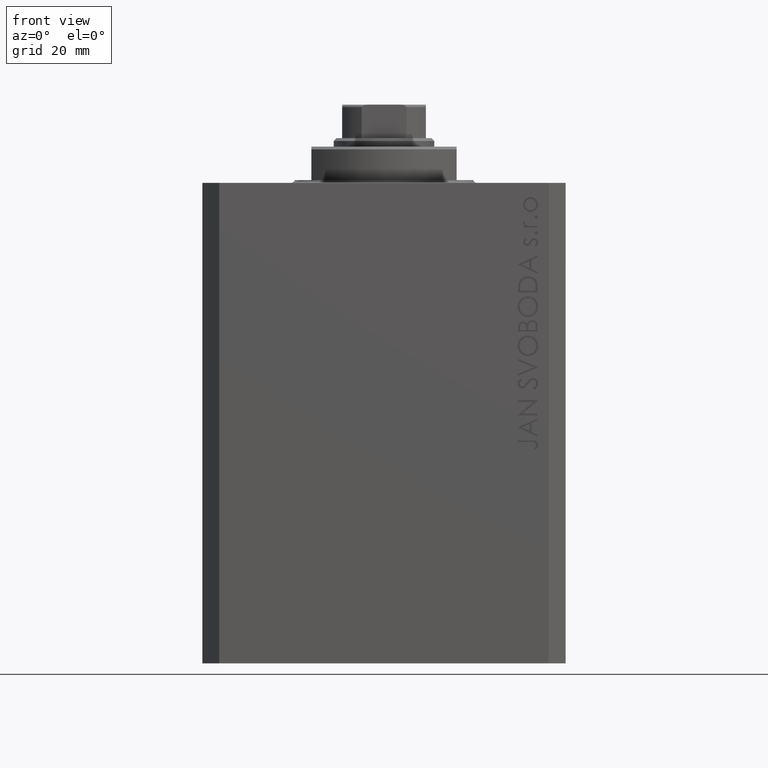
[diagram: clean part render]
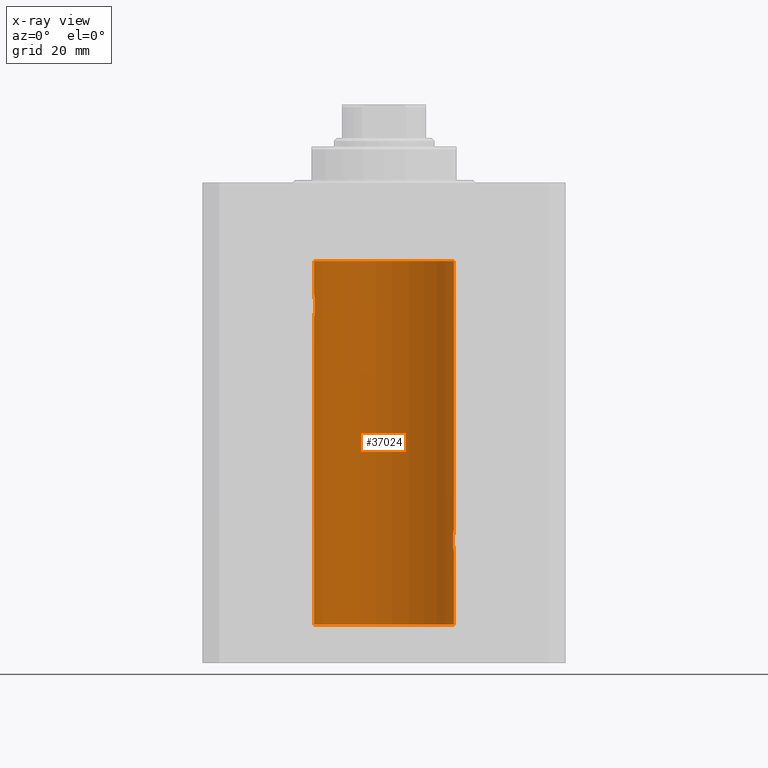
[diagram: x-ray — body ghosted, one internal face saturated and labeled with its STEP entity id]
A machine part, front view, then the same camera in x-ray: the body is ghosted and one INTERNAL B-rep face — a face not visible from any outside direction — is saturated and labeled: STEP entity #37024.
In plain terms, the highlighted cylindrical surface (partial cylindrical patch) has radius 12.5 mm, axis along (0, 0, 1).
Its self-contained STEP definition (entity closure, byte-faithful):
#30 = CARTESIAN_POINT ( 'NONE',  ( -12.37764291807175354, 1.747608771958140794, -20.99316879552500481 ) ) ;
#263 = CARTESIAN_POINT ( 'NONE',  ( -12.48983485452574982, 0.5201193324741355539, -23.93561774521849372 ) ) ;
#1508 = CARTESIAN_POINT ( 'NONE',  ( 12.39869754437268767, 1.598954131913722820, -65.22932152813012863 ) ) ;
#1640 = LINE ( 'NONE', #13071, #11823 ) ;
#1761 = ORIENTED_EDGE ( 'NONE', *, *, #27591, .T. ) ;
#2265 = LINE ( 'NONE', #45455, #19500 ) ;
#2315 = VERTEX_POINT ( 'NONE', #10642 ) ;
#2348 = DIRECTION ( 'NONE',  ( -0.000000000000000000, -0.000000000000000000, 1.000000000000000000 ) ) ;
#2592 = EDGE_CURVE ( 'NONE', #2315, #29070, #22992, .T. ) ;
#2729 = CARTESIAN_POINT ( 'NONE',  ( 12.50000000000000000, 2.171296804141808658E-15, -66.00000000000000000 ) ) ;
#3307 = EDGE_CURVE ( 'NONE', #7739, #16865, #1640, .T. ) ;
#3614 = CARTESIAN_POINT ( 'NONE',  ( -12.50000000000000533, 0.1306394121199390135, -24.00000000000000711 ) ) ;
#4089 = CARTESIAN_POINT ( 'NONE',  ( -12.35517291625592051, 1.897967064543089721, -22.64415233770293412 ) ) ;
#4131 = CARTESIAN_POINT ( 'NONE',  ( 12.46910683544639120, 0.8866026273585023709, -62.20247863689696288 ) ) ;
#6028 = CARTESIAN_POINT ( 'NONE',  ( 12.43016561391613095, 1.322713721413880661, -65.50578877836699121 ) ) ;
#6315 = ORIENTED_EDGE ( 'NONE', *, *, #30833, .F. ) ;
#6719 = CARTESIAN_POINT ( 'NONE',  ( -12.40913174964213184, 1.507394620545641439, -23.32102833500698225 ) ) ;
#7187 = CARTESIAN_POINT ( 'NONE',  ( -12.34109209020652465, 1.986986967296539897, -22.26269462454597914 ) ) ;
#7415 = DIRECTION ( 'NONE',  ( 1.000000000000000000, 0.000000000000000000, 0.000000000000000000 ) ) ;
#7422 = CARTESIAN_POINT ( 'NONE',  ( -12.50000000000000000, 1.867773856434666690E-17, -20.00000000000000000 ) ) ;
#7705 = CARTESIAN_POINT ( 'NONE',  ( 12.43037348241797879, 1.320834183883838220, -62.49243837704295856 ) ) ;
#7739 = VERTEX_POINT ( 'NONE', #31942 ) ;
#8162 = CARTESIAN_POINT ( 'NONE',  ( 12.37021546997940113, 1.797317011867403114, -63.11295119741077997 ) ) ;
#8439 = ORIENTED_EDGE ( 'NONE', *, *, #36577, .T. ) ;
#8449 = LINE ( 'NONE', #45438, #38800 ) ;
#8775 = CIRCLE ( 'NONE', #35451, 12.50000000000000000 ) ;
#8892 = CARTESIAN_POINT ( 'NONE',  ( -12.50000000000000000, 1.530808498934191521E-15, -79.09999999999999432 ) ) ;
#9138 = CARTESIAN_POINT ( 'NONE',  ( 12.37760587642916299, 1.747868572747719229, -65.00639653168998677 ) ) ;
#9476 = EDGE_CURVE ( 'NONE', #2315, #44884, #16927, .T. ) ;
#9585 = CARTESIAN_POINT ( 'NONE',  ( 12.33896267925302759, 2.000000000000248246, -64.26143174220787557 ) ) ;
#10276 = CARTESIAN_POINT ( 'NONE',  ( -12.46909283808506430, 0.8868029758979402155, -23.79742491916155345 ) ) ;
#10642 = CARTESIAN_POINT ( 'NONE',  ( -12.50000000000000000, 1.867773856434666690E-17, -20.00000000000000000 ) ) ;
#10985 = CARTESIAN_POINT ( 'NONE',  ( -12.44076681548080288, 1.220297236145718944, -23.58991408680628155 ) ) ;
#11513 = CARTESIAN_POINT ( 'NONE',  ( 12.40916530024876785, 1.507117913375715768, -62.67865955049006743 ) ) ;
#11823 = VECTOR ( 'NONE', #2348, 1000.000000000000000 ) ;
#11841 = VERTEX_POINT ( 'NONE', #14378 ) ;
#11972 = CARTESIAN_POINT ( 'NONE',  ( 12.35520276972935250, 1.897773362058238655, -63.35528278634336630 ) ) ;
#12461 = CARTESIAN_POINT ( 'NONE',  ( 12.48390005916862933, 0.6457215011736524568, -65.89742771554266199 ) ) ;
#12705 = CARTESIAN_POINT ( 'NONE',  ( 12.46019522898365395, 1.002712894177336000, -65.73540896027600411 ) ) ;
#13071 = CARTESIAN_POINT ( 'NONE',  ( 12.50000000000000000, 0.000000000000000000, -79.09999999999999432 ) ) ;
#13516 = EDGE_CURVE ( 'NONE', #11841, #29070, #27464, .T. ) ;
#14218 = AXIS2_PLACEMENT_3D ( 'NONE', #25801, #15522, #7415 ) ;
#14378 = CARTESIAN_POINT ( 'NONE',  ( 12.50000000000000000, 0.000000000000000000, -13.99999999999999822 ) ) ;
#14581 = CARTESIAN_POINT ( 'NONE',  ( -12.34781876294798053, 1.947190906025043633, -21.47436412829509678 ) ) ;
#14812 = CARTESIAN_POINT ( 'NONE',  ( -12.34922241902463114, 1.935814255713574239, -22.51937350851555308 ) ) ;
#15099 = CARTESIAN_POINT ( 'NONE',  ( 12.50000000000000355, 0.1306079576516675778, -62.00000000000000000 ) ) ;
#15522 = DIRECTION ( 'NONE',  ( -0.000000000000000000, -0.000000000000000000, 1.000000000000000000 ) ) ;
#15567 = CARTESIAN_POINT ( 'NONE',  ( 12.49788668346400300, 0.2632864803365712048, -62.01308975838333026 ) ) ;
#15724 = ORIENTED_EDGE ( 'NONE', *, *, #43202, .F. ) ;
#16106 = DIRECTION ( 'NONE',  ( -0.000000000000000000, -0.000000000000000000, 1.000000000000000000 ) ) ;
#16296 = CARTESIAN_POINT ( 'NONE',  ( 12.46901623405143944, 0.8878913781257876670, -65.79689651717549737 ) ) ;
#16367 = DIRECTION ( 'NONE',  ( 0.000000000000000000, 0.000000000000000000, 1.000000000000000000 ) ) ;
#16771 = DIRECTION ( 'NONE',  ( 0.000000000000000000, 0.000000000000000000, 1.000000000000000000 ) ) ;
#16865 = VERTEX_POINT ( 'NONE', #2729 ) ;
#16867 = CARTESIAN_POINT ( 'NONE',  ( -12.50000000000000000, 1.530808498934191521E-15, -79.09999999999999432 ) ) ;
#16927 = B_SPLINE_CURVE_WITH_KNOTS ( 'NONE', 3,
 ( #7422, #29640, #18165, #36785, #39422, #32726, #18633, #29162, #46800, #32961, #30, #14581, #43703, #43933, #7187, #14812, #4089, #25095, #40127, #47040, #6719, #21981, #10985, #25564, #10276, #36309, #263, #21272, #3614, #24851 ),
 .UNSPECIFIED., .F., .F.,
 ( 4, 2, 2, 2, 2, 2, 2, 2, 2, 2, 2, 2, 2, 2, 4 ),
 ( 1.814683826656258666E-20, 0.0003914362731607577369, 0.0007828725463215154739, 0.001174308819482273265, 0.001565745092643030948, 0.002348617638964546530, 0.003131490185286061895, 0.003522926458446825216, 0.003914362731607588103, 0.004305799004768351423, 0.004697235277929114744, 0.005088671551089878065, 0.005480107824250641385, 0.005871544097411404706, 0.006262980370572168026 ),
 .UNSPECIFIED. ) ;
#18165 = CARTESIAN_POINT ( 'NONE',  ( -12.49789934882883458, 0.2624928479599910047, -20.01301208516349917 ) ) ;
#18633 = CARTESIAN_POINT ( 'NONE',  ( -12.46021263690096958, 1.002494658017156981, -20.26446744561863156 ) ) ;
#18670 = CARTESIAN_POINT ( 'NONE',  ( 12.48395395845270350, 0.6446573166014684109, -62.10222124213517247 ) ) ;
#19500 = VECTOR ( 'NONE', #16106, 1000.000000000000000 ) ;
#19633 = CARTESIAN_POINT ( 'NONE',  ( 12.33896267925302759, 2.000000000000247802, -64.00000000000000000 ) ) ;
#20790 = ORIENTED_EDGE ( 'NONE', *, *, #13516, .T. ) ;
#21257 = EDGE_LOOP ( 'NONE', ( #15724, #6315, #40354, #1761, #26466, #8439, #20790, #36739, #45175 ) ) ;
#21272 = CARTESIAN_POINT ( 'NONE',  ( -12.49788564268284041, 0.2633501011236127343, -23.98690384766255335 ) ) ;
#21981 = CARTESIAN_POINT ( 'NONE',  ( -12.43034574091277911, 1.321095788880539024, -23.50733550364322255 ) ) ;
#22512 = DIRECTION ( 'NONE',  ( -0.000000000000000000, -0.000000000000000000, 1.000000000000000000 ) ) ;
#22992 = LINE ( 'NONE', #8892, #35381 ) ;
#24851 = CARTESIAN_POINT ( 'NONE',  ( -12.50000000000000000, 1.530808426276628993E-15, -23.99999999999999645 ) ) ;
#25095 = CARTESIAN_POINT ( 'NONE',  ( -12.37018026341338839, 1.797558627508998086, -22.88656313533016373 ) ) ;
#25564 = CARTESIAN_POINT ( 'NONE',  ( -12.46009879577771606, 1.003863686549169465, -23.73470742397611843 ) ) ;
#25735 = EDGE_CURVE ( 'NONE', #36501, #38778, #26409, .T. ) ;
#25801 = CARTESIAN_POINT ( 'NONE',  ( 0.000000000000000000, 0.000000000000000000, -79.09999999999999432 ) ) ;
#26409 = B_SPLINE_CURVE_WITH_KNOTS ( 'NONE', 3,
 ( #44227, #40865, #44682, #32772, #11972, #8162, #37296, #36598, #11513, #7705, #33711, #36826, #4131, #18670, #33231, #15567, #15099, #26547 ),
 .UNSPECIFIED., .F., .F.,
 ( 4, 2, 2, 2, 2, 2, 2, 2, 4 ),
 ( 0.003132244164174466730, 0.003523586189974248998, 0.003914928215774031266, 0.004306270241573813100, 0.004697612267373595801, 0.005088954293173362890, 0.005480296318973130847, 0.005871638344772898803, 0.006262980370572665892 ),
 .UNSPECIFIED. ) ;
#26466 = ORIENTED_EDGE ( 'NONE', *, *, #25735, .T. ) ;
#26547 = CARTESIAN_POINT ( 'NONE',  ( 12.50000000000000000, -7.266355570171783942E-23, -62.00000000000000711 ) ) ;
#27464 = CIRCLE ( 'NONE', #41932, 12.50000000000000000 ) ;
#27531 = CARTESIAN_POINT ( 'NONE',  ( 12.50000000000000178, 0.1324055009716465781, -66.00000000000000000 ) ) ;
#27591 = EDGE_CURVE ( 'NONE', #16865, #36501, #29130, .T. ) ;
#29070 = VERTEX_POINT ( 'NONE', #43459 ) ;
#29130 = B_SPLINE_CURVE_WITH_KNOTS ( 'NONE', 3,
 ( #30859, #27531, #31101, #31339, #12461, #16296, #12705, #45891, #6028, #1508, #9138, #38024, #9585, #19633 ),
 .UNSPECIFIED., .F., .F.,
 ( 4, 2, 2, 2, 2, 2, 4 ),
 ( 2.109579368922132354E-18, 0.0003915305205218100218, 0.0007830610410436179836, 0.001174591561565426108, 0.001566122082087234449, 0.002349183123130850481, 0.003132244164174466730 ),
 .UNSPECIFIED. ) ;
#29162 = CARTESIAN_POINT ( 'NONE',  ( -12.44082361696003503, 1.219754986802281449, -20.40963319990594016 ) ) ;
#29640 = CARTESIAN_POINT ( 'NONE',  ( -12.50000000000000000, 0.1323736289504353625, -20.00000000000000000 ) ) ;
#30696 = CARTESIAN_POINT ( 'NONE',  ( 0.000000000000000000, 0.000000000000000000, -79.09999999999999432 ) ) ;
#30833 = EDGE_CURVE ( 'NONE', #7739, #36259, #8775, .T. ) ;
#30859 = CARTESIAN_POINT ( 'NONE',  ( 12.50000000000000000, 2.171296804141808658E-15, -66.00000000000000000 ) ) ;
#31101 = CARTESIAN_POINT ( 'NONE',  ( 12.49789833780794446, 0.2625555164371020100, -65.98698170822146380 ) ) ;
#31339 = CARTESIAN_POINT ( 'NONE',  ( 12.48989642018887913, 0.5185418732824254029, -65.93601292187608465 ) ) ;
#31942 = CARTESIAN_POINT ( 'NONE',  ( 12.50000000000000000, 0.000000000000000000, -79.09999999999999432 ) ) ;
#32726 = CARTESIAN_POINT ( 'NONE',  ( -12.46903010196599304, 0.8876934327478135378, -20.20300788371381984 ) ) ;
#32772 = CARTESIAN_POINT ( 'NONE',  ( 12.34924836377099666, 1.935649219704934421, -63.48002062127162759 ) ) ;
#32961 = CARTESIAN_POINT ( 'NONE',  ( -12.39873273758732175, 1.598680238462371062, -20.77033506126851137 ) ) ;
#33124 = CARTESIAN_POINT ( 'NONE',  ( -12.50000000000000000, 1.530808426276628993E-15, -23.99999999999999645 ) ) ;
#33231 = CARTESIAN_POINT ( 'NONE',  ( 12.48983962833819028, 0.5199974825204898288, -62.06435160808016605 ) ) ;
#33711 = CARTESIAN_POINT ( 'NONE',  ( 12.44079117518645639, 1.220047488436369232, -62.40989676335084368 ) ) ;
#35381 = VECTOR ( 'NONE', #22512, 1000.000000000000000 ) ;
#35451 = AXIS2_PLACEMENT_3D ( 'NONE', #30696, #16367, #44775 ) ;
#36259 = VERTEX_POINT ( 'NONE', #16867 ) ;
#36309 = CARTESIAN_POINT ( 'NONE',  ( -12.48394649977302073, 0.6448065707253024526, -23.89773031393659153 ) ) ;
#36501 = VERTEX_POINT ( 'NONE', #37118 ) ;
#36577 = EDGE_CURVE ( 'NONE', #38778, #11841, #2265, .T. ) ;
#36598 = CARTESIAN_POINT ( 'NONE',  ( 12.39867611624532806, 1.590019252152828910, -62.77984495929611342 ) ) ;
#36739 = ORIENTED_EDGE ( 'NONE', *, *, #2592, .F. ) ;
#36785 = CARTESIAN_POINT ( 'NONE',  ( -12.48990118705761532, 0.5184196815546056047, -20.06395648222637007 ) ) ;
#36826 = CARTESIAN_POINT ( 'NONE',  ( 12.46011632531799407, 1.003644408234884100, -62.26516799687671977 ) ) ;
#37024 = ADVANCED_FACE ( 'NONE', ( #37250 ), #40120, .F. ) ;
#37118 = CARTESIAN_POINT ( 'NONE',  ( 12.33896267925302759, 2.000000000000247802, -64.00000000000000000 ) ) ;
#37250 = FACE_OUTER_BOUND ( 'NONE', #21257, .T. ) ;
#37296 = CARTESIAN_POINT ( 'NONE',  ( 12.37925647381943506, 1.734744884174218571, -62.99620732598647521 ) ) ;
#38024 = CARTESIAN_POINT ( 'NONE',  ( 12.34779119491631150, 1.947363444907009411, -64.52502775168252924 ) ) ;
#38778 = VERTEX_POINT ( 'NONE', #39434 ) ;
#38800 = VECTOR ( 'NONE', #42103, 1000.000000000000000 ) ;
#39422 = CARTESIAN_POINT ( 'NONE',  ( -12.48390768591463207, 0.6455696738844916016, -20.10252270298193977 ) ) ;
#39434 = CARTESIAN_POINT ( 'NONE',  ( 12.50000000000000000, -7.266355570171783942E-23, -62.00000000000000711 ) ) ;
#40120 = CYLINDRICAL_SURFACE ( 'NONE', #14218, 12.50000000000000000 ) ;
#40127 = CARTESIAN_POINT ( 'NONE',  ( -12.37922086519035325, 1.734998657226764829, -23.00335814299181436 ) ) ;
#40354 = ORIENTED_EDGE ( 'NONE', *, *, #3307, .T. ) ;
#40865 = CARTESIAN_POINT ( 'NONE',  ( 12.33896267925302581, 2.000000000000248246, -63.86934705949917657 ) ) ;
#41932 = AXIS2_PLACEMENT_3D ( 'NONE', #45406, #16771, #46098 ) ;
#42103 = DIRECTION ( 'NONE',  ( -0.000000000000000000, -0.000000000000000000, 1.000000000000000000 ) ) ;
#43202 = EDGE_CURVE ( 'NONE', #36259, #44884, #8449, .T. ) ;
#43459 = CARTESIAN_POINT ( 'NONE',  ( -12.50000000000000000, 1.530808498934191521E-15, -13.99999999999999822 ) ) ;
#43703 = CARTESIAN_POINT ( 'NONE',  ( -12.33897869807161385, 1.999901172190678089, -21.73788193668374547 ) ) ;
#43933 = CARTESIAN_POINT ( 'NONE',  ( -12.33895470450623044, 2.000049200055401766, -22.12992629360264729 ) ) ;
#44227 = CARTESIAN_POINT ( 'NONE',  ( 12.33896267925302759, 2.000000000000247802, -64.00000000000000000 ) ) ;
#44682 = CARTESIAN_POINT ( 'NONE',  ( 12.34110728646152033, 1.986893050944454897, -63.73661347764984697 ) ) ;
#44775 = DIRECTION ( 'NONE',  ( 1.000000000000000000, 0.000000000000000000, 0.000000000000000000 ) ) ;
#44884 = VERTEX_POINT ( 'NONE', #33124 ) ;
#45175 = ORIENTED_EDGE ( 'NONE', *, *, #9476, .T. ) ;
#45406 = CARTESIAN_POINT ( 'NONE',  ( 0.000000000000000000, 0.000000000000000000, -13.99999999999999822 ) ) ;
#45438 = CARTESIAN_POINT ( 'NONE',  ( -12.50000000000000000, 1.530808498934191521E-15, -79.09999999999999432 ) ) ;
#45455 = CARTESIAN_POINT ( 'NONE',  ( 12.50000000000000000, 0.000000000000000000, -79.09999999999999432 ) ) ;
#45891 = CARTESIAN_POINT ( 'NONE',  ( 12.44079900692651108, 1.220007525301739948, -65.59017579083668181 ) ) ;
#46098 = DIRECTION ( 'NONE',  ( 1.000000000000000000, 0.000000000000000000, 0.000000000000000000 ) ) ;
#46800 = CARTESIAN_POINT ( 'NONE',  ( -12.43019346654084956, 1.322451657002078340, -20.49398366327208620 ) ) ;
#47040 = CARTESIAN_POINT ( 'NONE',  ( -12.39864157855465088, 1.590288205413973532, -23.21980790594580313 ) ) ;